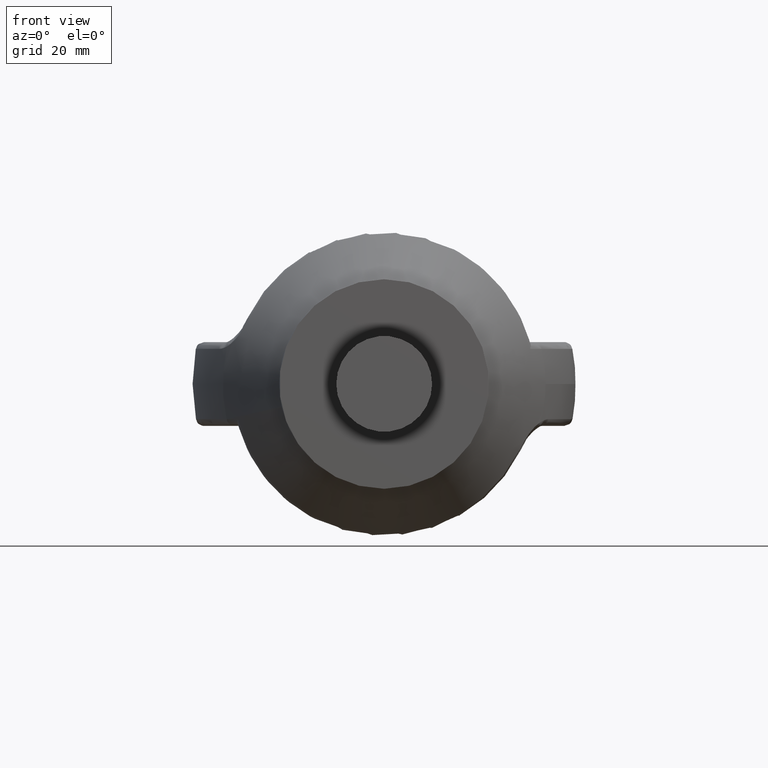
[diagram: clean part render]
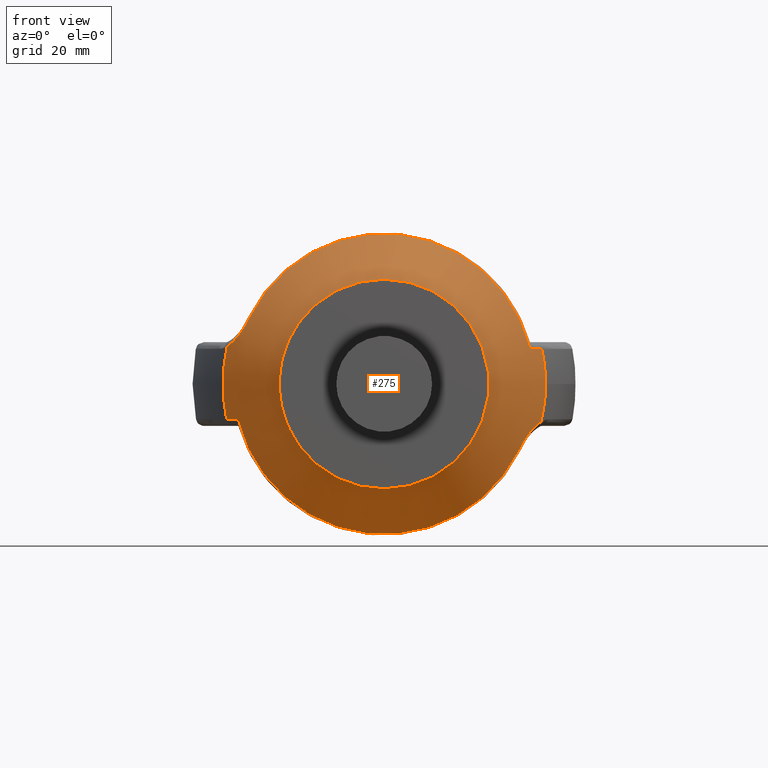
[diagram: same view with one face highlighted and labeled with its STEP entity id]
A machine part, front view. The second image highlights one B-rep face of the part: STEP entity #275.
In plain terms, the highlighted conical surface has half-angle 32.654 deg.
Its self-contained STEP definition (entity closure, byte-faithful):
#124=CONICAL_SURFACE('',#3048,15.577455357143,32.6537070211299);
#275=ADVANCED_FACE('',(#586,#587),#124,.T.);
#541=CIRCLE('',#3043,26.9423040781809);
#542=CIRCLE('',#3044,25.0906008034205);
#543=CIRCLE('',#3045,26.9423040781809);
#544=CIRCLE('',#3046,25.0906008034205);
#545=CIRCLE('',#3047,17.5000000000001);
#586=FACE_BOUND('',#649,.T.);
#587=FACE_BOUND('',#650,.T.);
#649=EDGE_LOOP('',(#1330,#1331,#1332,#1333,#1334,#1335,#1336,#1337));
#650=EDGE_LOOP('',(#1338));
#1330=ORIENTED_EDGE('',*,*,#2434,.T.);
#1331=ORIENTED_EDGE('',*,*,#2435,.T.);
#1332=ORIENTED_EDGE('',*,*,#2436,.T.);
#1333=ORIENTED_EDGE('',*,*,#2437,.T.);
#1334=ORIENTED_EDGE('',*,*,#2438,.T.);
#1335=ORIENTED_EDGE('',*,*,#2439,.T.);
#1336=ORIENTED_EDGE('',*,*,#2440,.T.);
#1337=ORIENTED_EDGE('',*,*,#2441,.T.);
#1338=ORIENTED_EDGE('',*,*,#2442,.F.);
#2154=VERTEX_POINT('',#4030);
#2155=VERTEX_POINT('',#4031);
#2156=VERTEX_POINT('',#4039);
#2157=VERTEX_POINT('',#4041);
#2158=VERTEX_POINT('',#4046);
#2159=VERTEX_POINT('',#4048);
#2160=VERTEX_POINT('',#4056);
#2161=VERTEX_POINT('',#4058);
#2162=VERTEX_POINT('',#4064);
#2434=EDGE_CURVE('',#2154,#2155,#541,.T.);
#2435=EDGE_CURVE('',#2155,#2156,#2812,.T.);
#2436=EDGE_CURVE('',#2156,#2157,#542,.T.);
#2437=EDGE_CURVE('',#2157,#2158,#2813,.T.);
#2438=EDGE_CURVE('',#2158,#2159,#543,.T.);
#2439=EDGE_CURVE('',#2159,#2160,#2814,.T.);
#2440=EDGE_CURVE('',#2160,#2161,#544,.T.);
#2441=EDGE_CURVE('',#2161,#2154,#2815,.T.);
#2442=EDGE_CURVE('',#2162,#2162,#545,.T.);
#2812=B_SPLINE_CURVE_WITH_KNOTS('',3,(#4032,#4033,#4034,#4035,#4036,#4037,
#4038),.UNSPECIFIED.,.F.,.F.,(4,3,4),(0.,0.808979286244742,1.),
 .UNSPECIFIED.);
#2813=B_SPLINE_CURVE_WITH_KNOTS('',3,(#4042,#4043,#4044,#4045),
 .UNSPECIFIED.,.F.,.F.,(4,4),(0.,1.),.UNSPECIFIED.);
#2814=B_SPLINE_CURVE_WITH_KNOTS('',3,(#4049,#4050,#4051,#4052,#4053,#4054,
#4055),.UNSPECIFIED.,.F.,.F.,(4,3,4),(0.,0.808979286244742,1.),
 .UNSPECIFIED.);
#2815=B_SPLINE_CURVE_WITH_KNOTS('',3,(#4059,#4060,#4061,#4062),
 .UNSPECIFIED.,.F.,.F.,(4,4),(0.,1.),.UNSPECIFIED.);
#3043=AXIS2_PLACEMENT_3D('',#4029,#3235,#3236);
#3044=AXIS2_PLACEMENT_3D('',#4040,#3237,#3238);
#3045=AXIS2_PLACEMENT_3D('',#4047,#3239,#3240);
#3046=AXIS2_PLACEMENT_3D('',#4057,#3241,#3242);
#3047=AXIS2_PLACEMENT_3D('',#4063,#3243,#3244);
#3048=AXIS2_PLACEMENT_3D('',#4065,#3245,#3246);
#3235=DIRECTION('',(-1.90154478884631E-15,-1.,0.));
#3236=DIRECTION('',(1.,-1.93159813386005E-15,0.));
#3237=DIRECTION('',(-1.94269602349167E-16,-1.,-4.55156335694492E-31));
#3238=DIRECTION('',(-1.,2.07415137991473E-16,-2.34291072916505E-15));
#3239=DIRECTION('',(-1.90154478884631E-15,-1.,0.));
#3240=DIRECTION('',(1.,-1.93159813386005E-15,0.));
#3241=DIRECTION('',(1.94269602349167E-16,-1.,0.));
#3242=DIRECTION('',(1.,2.07415137991473E-16,0.));
#3243=DIRECTION('',(0.,-1.,0.));
#3244=DIRECTION('',(0.,0.,1.));
#3245=DIRECTION('',(1.90154478884631E-15,1.,0.));
#3246=DIRECTION('',(-1.,1.98729591827863E-15,0.));
#4029=CARTESIAN_POINT('',(-9.36813676240044E-14,17.7340725427552,0.));
#4030=CARTESIAN_POINT('',(-26.1935897104737,17.7340725427552,6.30742476138499));
#4031=CARTESIAN_POINT('',(-26.2981475284626,17.7340725427552,-5.85620915032687));
#4032=CARTESIAN_POINT('',(-26.2981475284626,17.7340725427552,-5.85620915032687));
#4033=CARTESIAN_POINT('',(-25.7851412120496,16.9543856902893,-5.86117809137301));
#4034=CARTESIAN_POINT('',(-25.2715541938682,16.1750822131146,-5.86643264376001));
#4035=CARTESIAN_POINT('',(-24.757264047977,15.3962458395538,-5.8720280008291));
#4036=CARTESIAN_POINT('',(-24.6358269343439,15.2123425663659,-5.87334920835689));
#4037=CARTESIAN_POINT('',(-24.5143504625792,15.0284654117757,-5.87468947509353));
#4038=CARTESIAN_POINT('',(-24.3928327444381,14.8446156737455,-5.87604964057214));
#4039=CARTESIAN_POINT('',(-24.3928327444381,14.8446156737455,-5.87604964057214));
#4040=CARTESIAN_POINT('',(9.91757992758659E-14,14.8446156737455,2.32360044196946E-28));
#4041=CARTESIAN_POINT('',(22.5422024542121,14.8446156737456,-11.0175930760726));
#4042=CARTESIAN_POINT('',(22.5422024542121,14.8446156737455,-11.0175930760726));
#4043=CARTESIAN_POINT('',(23.5597363624101,14.8446156737455,-8.93569958043786));
#4044=CARTESIAN_POINT('',(24.8676766635644,16.0212727582385,-7.12508739064537));
#4045=CARTESIAN_POINT('',(26.1935897104737,17.7340725427552,-6.30742476138493));
#4046=CARTESIAN_POINT('',(26.1935897104737,17.7340725427552,-6.30742476138493));
#4047=CARTESIAN_POINT('',(-9.36813676240044E-14,17.7340725427552,0.));
#4048=CARTESIAN_POINT('',(26.2981475284627,17.7340725427552,5.85620915032681));
#4049=CARTESIAN_POINT('',(26.2981475284627,17.7340725427552,5.85620915032681));
#4050=CARTESIAN_POINT('',(25.7851412120496,16.9543856902893,5.86117809137295));
#4051=CARTESIAN_POINT('',(25.2715541938682,16.1750822131146,5.86643264375995));
#4052=CARTESIAN_POINT('',(24.757264047977,15.3962458395538,5.87202800082904));
#4053=CARTESIAN_POINT('',(24.6358269343439,15.2123425663659,5.87334920835683));
#4054=CARTESIAN_POINT('',(24.5143504625792,15.0284654117757,5.87468947509348));
#4055=CARTESIAN_POINT('',(24.3928327444381,14.8446156737455,5.87604964057208));
#4056=CARTESIAN_POINT('',(24.3928327444381,14.8446156737455,5.87604964057208));
#4057=CARTESIAN_POINT('',(-9.91757992758659E-14,14.8446156737455,0.));
#4058=CARTESIAN_POINT('',(-22.5422024542121,14.8446156737456,11.0175930760727));
#4059=CARTESIAN_POINT('',(-22.542202454212,14.8446156737455,11.0175930760726));
#4060=CARTESIAN_POINT('',(-23.5597363624101,14.8446156737455,8.93569958043791));
#4061=CARTESIAN_POINT('',(-24.8676766635644,16.0212727582385,7.12508739064543));
#4062=CARTESIAN_POINT('',(-26.1935897104737,17.7340725427552,6.307424761385));
#4063=CARTESIAN_POINT('',(-1.27403500852703E-13,3.,2.7030162057077E-14));
#4064=CARTESIAN_POINT('',(-1.27403500852703E-13,3.,17.5000000000001));
#4065=CARTESIAN_POINT('',(-1.27403500852703E-13,2.77555756156289E-14,0.));